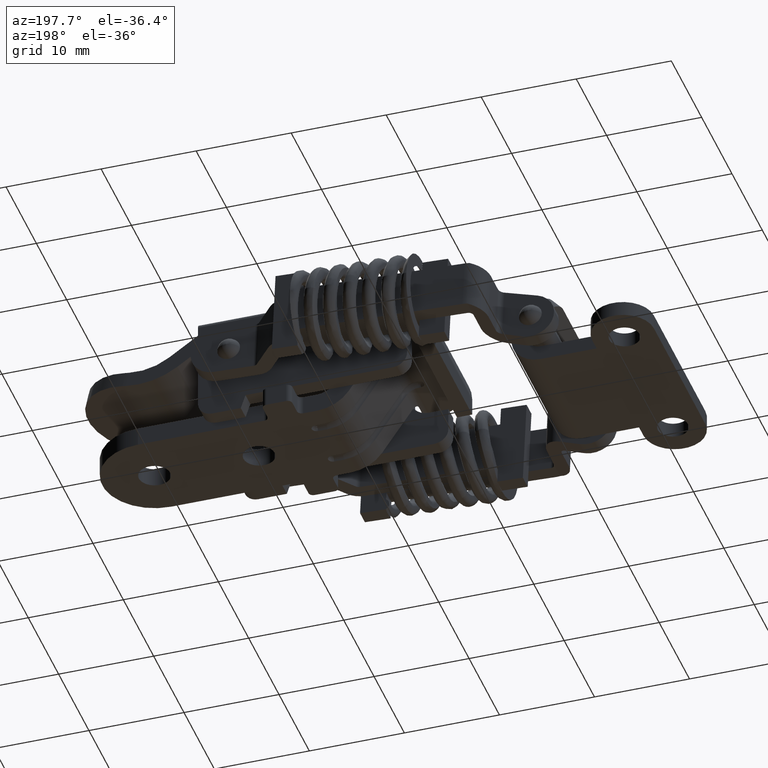
[diagram: clean part render]
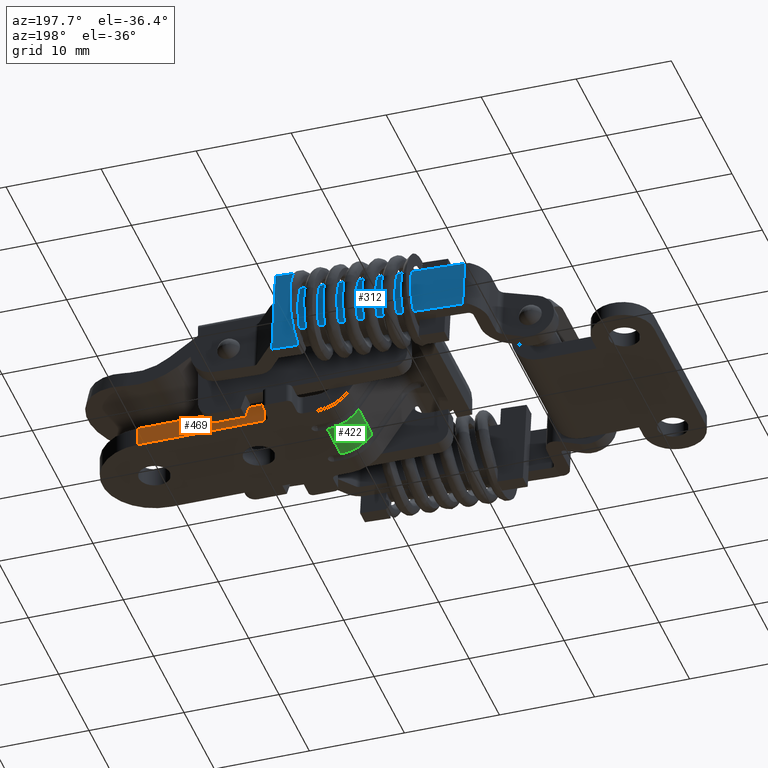
[diagram: same view with three faces highlighted in distinct colors, each labeled with its STEP entity id]
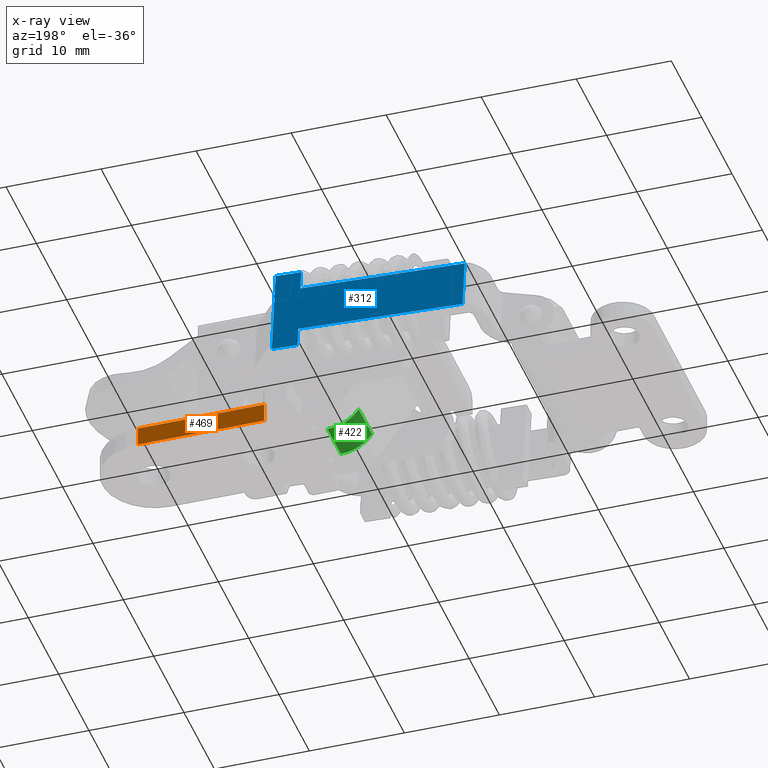
[diagram: x-ray of the same camera — body ghosted, the three highlighted faces saturated]
A machine part, auxiliary view with three faces highlighted in distinct colors.
The next image is the same camera in x-ray (body ghosted, the three faces saturated) — at least one of them is partly hidden behind the body in this view.
Their STEP definitions:

[orange] entity #469 — the highlighted planar face has unit normal (-0, 1, 0).
#469=ADVANCED_FACE('',(#2419),#2418,.T.);
#2418=PLANE('',#5968);
#2419=FACE_OUTER_BOUND('',#5969,.T.);
#5965=CARTESIAN_POINT('',(-3.52999999999E+00,1.31000000003E+01,-3.79999999999E+00));
#5966=DIRECTION('',(-3.32512578457E-12,1.00000000000E+00,0.00000000000E+00));
#5967=DIRECTION('',(1.00000000000E+00,3.32512578457E-12,0.00000000000E+00));
#5968=AXIS2_PLACEMENT_3D('',#5965,#5966,#5967);
#5969=EDGE_LOOP('',(#13481,#13482,#13483,#13484));
#13481=ORIENTED_EDGE('',*,*,#15002,.F.);
#13482=ORIENTED_EDGE('',*,*,#14968,.T.);
#13483=ORIENTED_EDGE('',*,*,#14999,.T.);
#13484=ORIENTED_EDGE('',*,*,#14871,.T.);
#14871=EDGE_CURVE('',#17920,#17913,#17921,.T.);
#14968=EDGE_CURVE('',#18552,#18553,#18554,.T.);
#14999=EDGE_CURVE('',#18553,#17920,#18764,.T.);
#15002=EDGE_CURVE('',#18552,#17913,#18782,.T.);
#17913=VERTEX_POINT('',#23232);
#17920=VERTEX_POINT('',#23237);
#17921=LINE('',#23238,#23239);
#18552=VERTEX_POINT('',#23650);
#18553=VERTEX_POINT('',#23651);
#18554=LINE('',#23652,#23653);
#18764=LINE('',#23784,#23785);
#18782=LINE('',#23793,#23794);
#23232=CARTESIAN_POINT('',(1.11000000000E+01,1.31000000004E+01,-3.99999999999E+00));
#23237=CARTESIAN_POINT('',(-2.19999999999E+00,1.31000000003E+01,-3.99999999999E+00));
#23238=CARTESIAN_POINT('',(-2.19999999999E+00,1.31000000003E+01,-3.99999999999E+00));
#23239=VECTOR('',#23240,1.33000000000E+01);
#23240=DIRECTION('',(1.00000000000E+00,7.51879761459E-12,0.00000000000E+00));
#23650=CARTESIAN_POINT('',(1.11000000000E+01,1.31000000004E+01,-6.00000000000E+00));
#23651=CARTESIAN_POINT('',(-2.19999999999E+00,1.31000000003E+01,-6.00000000000E+00));
#23652=CARTESIAN_POINT('',(1.11000000000E+01,1.31000000004E+01,-6.00000000000E+00));
#23653=VECTOR('',#23654,1.33000000000E+01);
#23654=DIRECTION('',(-1.00000000000E+00,-7.51879761459E-12,0.00000000000E+00));
#23784=CARTESIAN_POINT('',(-2.19999999999E+00,1.31000000003E+01,-6.00000000000E+00));
#23785=VECTOR('',#23786,2.00000000001E+00);
#23786=DIRECTION('',(0.00000000000E+00,0.00000000000E+00,1.00000000000E+00));
#23793=CARTESIAN_POINT('',(1.11000000000E+01,1.31000000004E+01,-6.00000000000E+00));
#23794=VECTOR('',#23795,2.00000000001E+00);
#23795=DIRECTION('',(0.00000000000E+00,0.00000000000E+00,1.00000000000E+00));

[blue] entity #312 — the highlighted planar face has unit normal (0, -1, -0).
#312=ADVANCED_FACE('',(#839),#838,.F.);
#838=PLANE('',#4676);
#839=FACE_OUTER_BOUND('',#4677,.T.);
#4673=CARTESIAN_POINT('',(1.53500000000E+01,-5.40000000006E+00,1.99999999994E+00));
#4674=DIRECTION('',(-1.00000000000E+00,0.00000000000E+00,0.00000000000E+00));
#4675=DIRECTION('',(0.00000000000E+00,0.00000000000E+00,1.00000000000E+00));
#4676=AXIS2_PLACEMENT_3D('',#4673,#4674,#4675);
#4677=EDGE_LOOP('',(#12687,#12688,#12689,#12690,#12691,#12692,#12693,#12694));
#12687=ORIENTED_EDGE('',*,*,#14552,.F.);
#12688=ORIENTED_EDGE('',*,*,#14564,.T.);
#12689=ORIENTED_EDGE('',*,*,#14558,.F.);
#12690=ORIENTED_EDGE('',*,*,#14555,.F.);
#12691=ORIENTED_EDGE('',*,*,#14519,.F.);
#12692=ORIENTED_EDGE('',*,*,#14565,.F.);
#12693=ORIENTED_EDGE('',*,*,#14566,.F.);
#12694=ORIENTED_EDGE('',*,*,#14567,.F.);
#14519=EDGE_CURVE('',#15562,#15563,#15564,.T.);
#14552=EDGE_CURVE('',#15780,#15787,#15788,.T.);
#14555=EDGE_CURVE('',#15563,#15807,#15808,.T.);
#14558=EDGE_CURVE('',#15807,#15827,#15828,.T.);
#14564=EDGE_CURVE('',#15780,#15827,#15866,.T.);
#14565=EDGE_CURVE('',#15872,#15562,#15873,.T.);
#14566=EDGE_CURVE('',#15879,#15872,#15880,.T.);
#14567=EDGE_CURVE('',#15787,#15879,#15886,.T.);
#15562=VERTEX_POINT('',#21793);
#15563=VERTEX_POINT('',#21794);
#15564=LINE('',#21795,#21796);
#15780=VERTEX_POINT('',#21921);
#15787=VERTEX_POINT('',#21926);
#15788=LINE('',#21927,#21928);
#15807=VERTEX_POINT('',#21937);
#15808=LINE('',#21938,#21939);
#15827=VERTEX_POINT('',#21948);
#15828=LINE('',#21949,#21950);
#15866=LINE('',#21970,#21971);
#15872=VERTEX_POINT('',#21973);
#15873=LINE('',#21974,#21975);
#15879=VERTEX_POINT('',#21977);
#15880=LINE('',#21978,#21979);
#15886=LINE('',#21981,#21982);
#21793=CARTESIAN_POINT('',(1.53500000000E+01,-4.50000000006E+00,3.99999999995E+00));
#21794=CARTESIAN_POINT('',(1.53500000000E+01,-4.50000000006E+00,6.69999999995E+00));
#21795=CARTESIAN_POINT('',(1.53500000000E+01,-4.50000000006E+00,3.99999999995E+00));
#21796=VECTOR('',#21797,2.70000000000E+00);
#21797=DIRECTION('',(0.00000000000E+00,0.00000000000E+00,1.00000000000E+00));
#21921=CARTESIAN_POINT('',(1.53500000000E+01,2.49999999998E+00,2.40000000000E+01));
#21926=CARTESIAN_POINT('',(1.53500000000E+01,2.49999999996E+00,6.69999999995E+00));
#21927=CARTESIAN_POINT('',(1.53500000000E+01,2.49999999998E+00,2.40000000000E+01));
#21928=VECTOR('',#21929,1.73000000000E+01);
#21929=DIRECTION('',(0.00000000000E+00,-1.15606945981E-12,-1.00000000000E+00));
#21937=CARTESIAN_POINT('',(1.53500000000E+01,-2.50000000004E+00,6.69999999995E+00));
#21938=CARTESIAN_POINT('',(1.53500000000E+01,-4.50000000006E+00,6.69999999995E+00));
#21939=VECTOR('',#21940,2.00000000002E+00);
#21940=DIRECTION('',(0.00000000000E+00,1.00000000000E+00,0.00000000000E+00));
#21948=CARTESIAN_POINT('',(1.53500000000E+01,-2.50000000002E+00,2.40000000000E+01));
#21949=CARTESIAN_POINT('',(1.53500000000E+01,-2.50000000004E+00,6.69999999995E+00));
#21950=VECTOR('',#21951,1.73000000000E+01);
#21951=DIRECTION('',(0.00000000000E+00,1.15606945981E-12,1.00000000000E+00));
#21970=CARTESIAN_POINT('',(1.53500000000E+01,2.49999999998E+00,2.40000000000E+01));
#21971=VECTOR('',#21972,5.00000000000E+00);
#21972=DIRECTION('',(0.00000000000E+00,-1.00000000000E+00,0.00000000000E+00));
#21973=CARTESIAN_POINT('',(1.53500000000E+01,4.49999999994E+00,3.99999999995E+00));
#21974=CARTESIAN_POINT('',(1.53500000000E+01,4.49999999994E+00,3.99999999995E+00));
#21975=VECTOR('',#21976,9.00000000000E+00);
#21976=DIRECTION('',(0.00000000000E+00,-1.00000000000E+00,0.00000000000E+00));
#21977=CARTESIAN_POINT('',(1.53500000000E+01,4.49999999994E+00,6.69999999995E+00));
#21978=CARTESIAN_POINT('',(1.53500000000E+01,4.49999999994E+00,6.69999999995E+00));
#21979=VECTOR('',#21980,2.70000000000E+00);
#21980=DIRECTION('',(0.00000000000E+00,0.00000000000E+00,-1.00000000000E+00));
#21981=CARTESIAN_POINT('',(1.53500000000E+01,2.49999999996E+00,6.69999999995E+00));
#21982=VECTOR('',#21983,1.99999999998E+00);
#21983=DIRECTION('',(0.00000000000E+00,1.00000000000E+00,0.00000000000E+00));

[green] entity #422 — the highlighted cylindrical surface (partial cylindrical patch) has radius 4 mm, axis along (0, 1, 0).
#422=ADVANCED_FACE('',(#1945),#1944,.T.);
#1944=CYLINDRICAL_SURFACE('',#5524,4.00000000000E+00);
#1945=FACE_OUTER_BOUND('',#5525,.T.);
#5521=CARTESIAN_POINT('',(-7.79999999998E+00,7.60000014305E+00,-2.00000000000E+00));
#5522=DIRECTION('',(-0.00000000000E+00,1.00000000000E+00,0.00000000000E+00));
#5523=DIRECTION('',(8.23701110453E-01,-0.00000000000E+00,5.67024232849E-01));
#5524=AXIS2_PLACEMENT_3D('',#5521,#5522,#5523);
#5525=EDGE_LOOP('',(#13214,#13215,#13216,#13217));
#13214=ORIENTED_EDGE('',*,*,#14853,.T.);
#13215=ORIENTED_EDGE('',*,*,#14854,.F.);
#13216=ORIENTED_EDGE('',*,*,#14850,.F.);
#13217=ORIENTED_EDGE('',*,*,#14812,.T.);
#14812=EDGE_CURVE('',#17526,#17478,#17527,.T.);
#14850=EDGE_CURVE('',#17526,#17777,#17778,.T.);
#14853=EDGE_CURVE('',#17478,#17797,#17798,.T.);
#14854=EDGE_CURVE('',#17777,#17797,#17804,.T.);
#17478=VERTEX_POINT('',#22956);
#17526=VERTEX_POINT('',#22988);
#17527=CIRCLE('',#22992,4.00000000000E+00);
#17777=VERTEX_POINT('',#23150);
#17778=LINE('',#23151,#23152);
#17797=VERTEX_POINT('',#23161);
#17798=LINE('',#23162,#23163);
#17804=CIRCLE('',#23168,4.00000000000E+00);
#22956=CARTESIAN_POINT('',(-7.79999999998E+00,9.80000000002E+00,-6.00000000000E+00));
#22988=CARTESIAN_POINT('',(-1.10948044418E+01,9.80000000002E+00,-4.26809693141E+00));
#22989=CARTESIAN_POINT('',(-7.79999999998E+00,9.80000000002E+00,-2.00000000000E+00));
#22990=DIRECTION('',(0.00000000000E+00,-1.00000000000E+00,-0.00000000000E+00));
#22991=DIRECTION('',(8.23701110452E-01,-0.00000000000E+00,5.67024232851E-01));
#22992=AXIS2_PLACEMENT_3D('',#22989,#22990,#22991);
#23150=CARTESIAN_POINT('',(-1.10948044418E+01,5.40000000051E+00,-4.26809693141E+00));
#23151=CARTESIAN_POINT('',(-1.10948044418E+01,9.80000000002E+00,-4.26809693141E+00));
#23152=VECTOR('',#23153,4.39999999951E+00);
#23153=DIRECTION('',(0.00000000000E+00,-1.00000000000E+00,0.00000000000E+00));
#23161=CARTESIAN_POINT('',(-7.79999999998E+00,5.40000000051E+00,-6.00000000000E+00));
#23162=CARTESIAN_POINT('',(-7.79999999998E+00,9.80000000002E+00,-6.00000000000E+00));
#23163=VECTOR('',#23164,4.39999999951E+00);
#23164=DIRECTION('',(0.00000000000E+00,-1.00000000000E+00,0.00000000000E+00));
#23165=CARTESIAN_POINT('',(-7.79999999998E+00,5.40000000051E+00,-2.00000000000E+00));
#23166=DIRECTION('',(0.00000000000E+00,-1.00000000000E+00,-0.00000000000E+00));
#23167=DIRECTION('',(8.23701110452E-01,-0.00000000000E+00,5.67024232851E-01));
#23168=AXIS2_PLACEMENT_3D('',#23165,#23166,#23167);